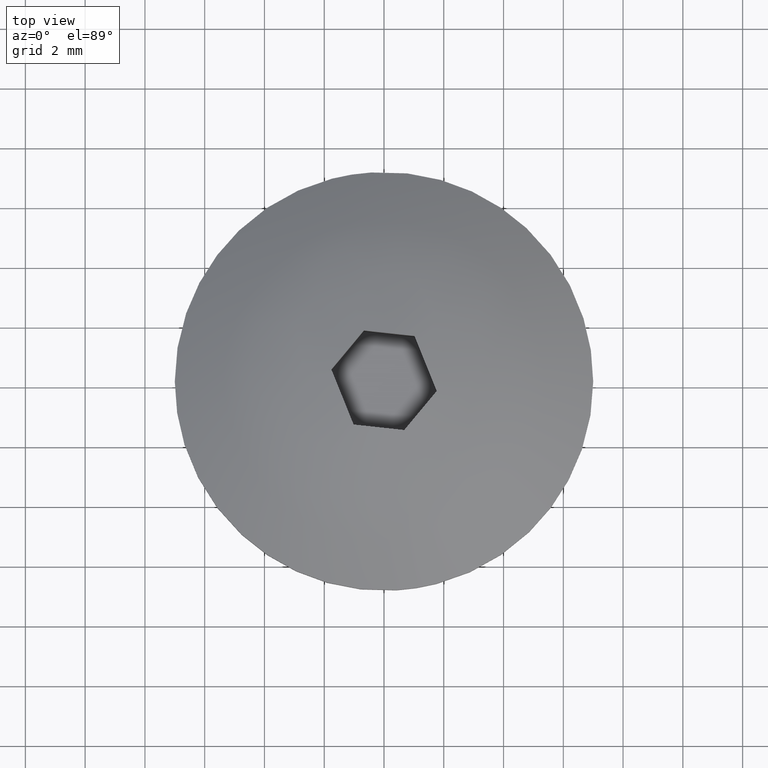
[diagram: clean part render]
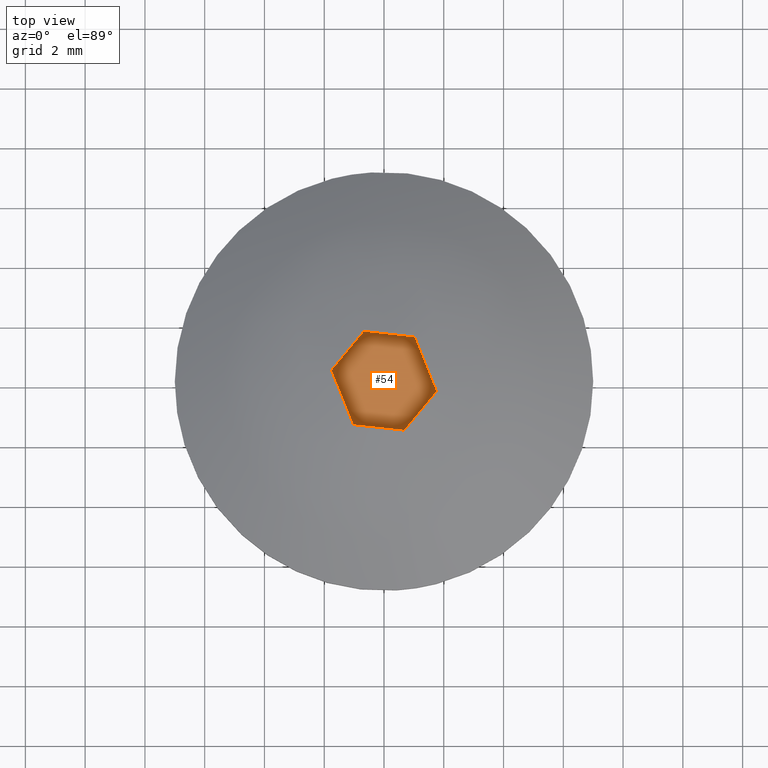
[diagram: same view with one face highlighted and labeled with its STEP entity id]
A machine part, top view. The second image highlights one B-rep face of the part: STEP entity #54.
In plain terms, the highlighted face is a freeform B-spline surface patch.
Its self-contained STEP definition (entity closure, byte-faithful):
#5=CARTESIAN_POINT('',(-0.788051465116710,-2.453707353258362,8.258264999999859));
#6=CARTESIAN_POINT('',(2.271376967026682,-1.217617464586733,8.258264999999859));
#7=CARTESIAN_POINT('',(-2.271359331522664,1.217606765313707,8.258264999999859));
#8=CARTESIAN_POINT('',(0.788069100620728,2.453696653985336,8.258264999999859));
#9=B_SPLINE_SURFACE_WITH_KNOTS('',1,1,((#5,#7),(#6,#8)),.UNSPECIFIED.,.F.,.F.,.U.,(2,2),(2,2),(0.0,3.299700068837108),(0.0,3.959640082604528),.UNSPECIFIED.);
#10=CARTESIAN_POINT('',(1.018055489983010,1.484440929750002,8.258264999999859));
#11=VERTEX_POINT('',#10);
#12=CARTESIAN_POINT('',(-0.674283335051241,1.668925421504345,8.258264999999859));
#13=VERTEX_POINT('',#12);
#14=CARTESIAN_POINT('',(1.018055489983010,1.484440929750002,8.258264999999859));
#15=CARTESIAN_POINT('',(-0.674283335051241,1.668925421504345,8.258264999999859));
#16=QUASI_UNIFORM_CURVE('',1,(#14,#15),.UNSPECIFIED.,.F.,.U.);
#17=EDGE_CURVE('',#11,#13,#16,.T.);
#18=ORIENTED_EDGE('',*,*,#17,.T.);
#19=CARTESIAN_POINT('',(-1.763495894978115,0.360620707107231,8.258264999999859));
#20=VERTEX_POINT('',#19);
#21=CARTESIAN_POINT('',(-0.674283335051241,1.668925421504345,8.258264999999859));
#22=CARTESIAN_POINT('',(-1.763495894978115,0.360620707107231,8.258264999999859));
#23=QUASI_UNIFORM_CURVE('',1,(#21,#22),.UNSPECIFIED.,.F.,.U.);
#24=EDGE_CURVE('',#13,#20,#23,.T.);
#25=ORIENTED_EDGE('',*,*,#24,.T.);
#26=CARTESIAN_POINT('',(-1.018037892914166,-1.484451748694662,8.258264999999859));
#27=VERTEX_POINT('',#26);
#28=CARTESIAN_POINT('',(-1.763495894978115,0.360620707107231,8.258264999999859));
#29=CARTESIAN_POINT('',(-1.018037892914166,-1.484451748694662,8.258264999999859));
#30=QUASI_UNIFORM_CURVE('',1,(#28,#29),.UNSPECIFIED.,.F.,.U.);
#31=EDGE_CURVE('',#20,#27,#30,.T.);
#32=ORIENTED_EDGE('',*,*,#31,.T.);
#33=CARTESIAN_POINT('',(0.674300932120085,-1.668936240449005,8.258264999999859));
#34=VERTEX_POINT('',#33);
#35=CARTESIAN_POINT('',(-1.018037892914166,-1.484451748694662,8.258264999999859));
#36=CARTESIAN_POINT('',(0.674300932120085,-1.668936240449005,8.258264999999859));
#37=QUASI_UNIFORM_CURVE('',1,(#35,#36),.UNSPECIFIED.,.F.,.U.);
#38=EDGE_CURVE('',#27,#34,#37,.T.);
#39=ORIENTED_EDGE('',*,*,#38,.T.);
#40=CARTESIAN_POINT('',(1.763513492046960,-0.360631526051891,8.258264999999859));
#41=VERTEX_POINT('',#40);
#42=CARTESIAN_POINT('',(0.674300932120085,-1.668936240449005,8.258264999999859));
#43=CARTESIAN_POINT('',(1.763513492046960,-0.360631526051891,8.258264999999859));
#44=QUASI_UNIFORM_CURVE('',1,(#42,#43),.UNSPECIFIED.,.F.,.U.);
#45=EDGE_CURVE('',#34,#41,#44,.T.);
#46=ORIENTED_EDGE('',*,*,#45,.T.);
#47=CARTESIAN_POINT('',(1.763513492046960,-0.360631526051891,8.258264999999859));
#48=CARTESIAN_POINT('',(1.018055489983010,1.484440929750002,8.258264999999859));
#49=QUASI_UNIFORM_CURVE('',1,(#47,#48),.UNSPECIFIED.,.F.,.U.);
#50=EDGE_CURVE('',#41,#11,#49,.T.);
#51=ORIENTED_EDGE('',*,*,#50,.T.);
#52=EDGE_LOOP('',(#18,#25,#32,#39,#46,#51));
#53=FACE_OUTER_BOUND('',#52,.T.);
#54=ADVANCED_FACE('',(#53),#9,.T.);